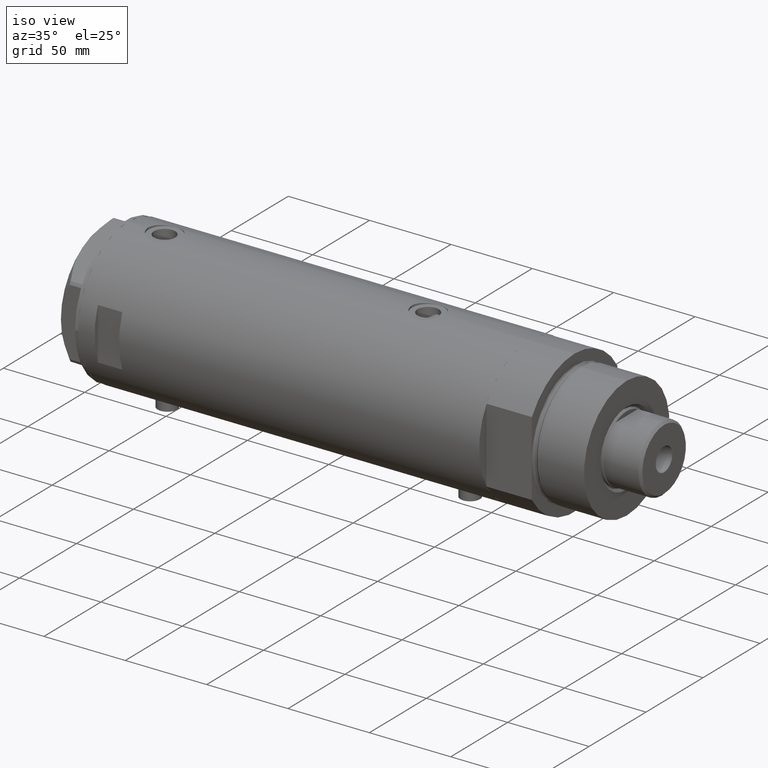
[diagram: clean part render]
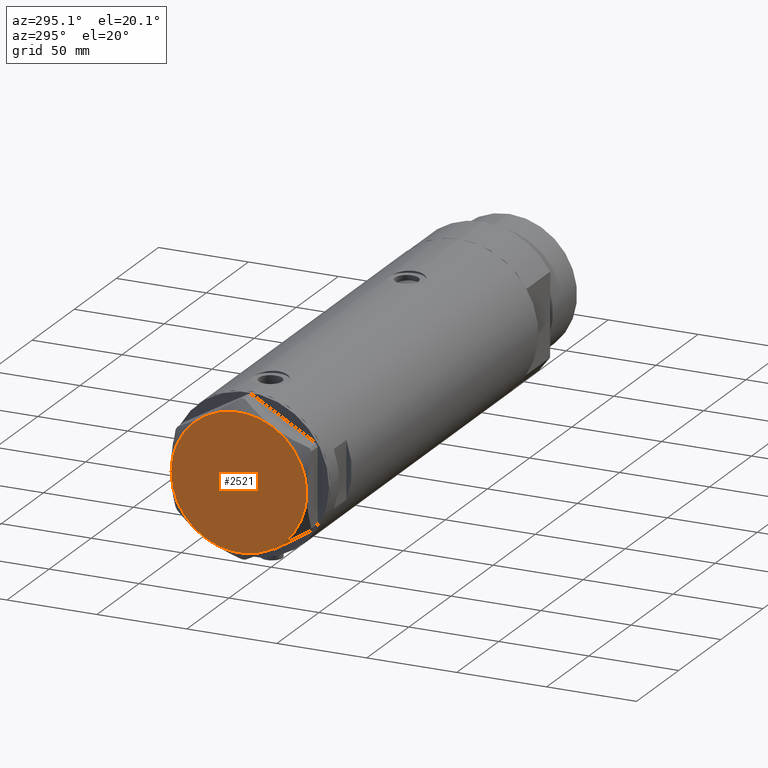
[diagram: tour spotlight — one face highlighted and labeled with its STEP entity id]
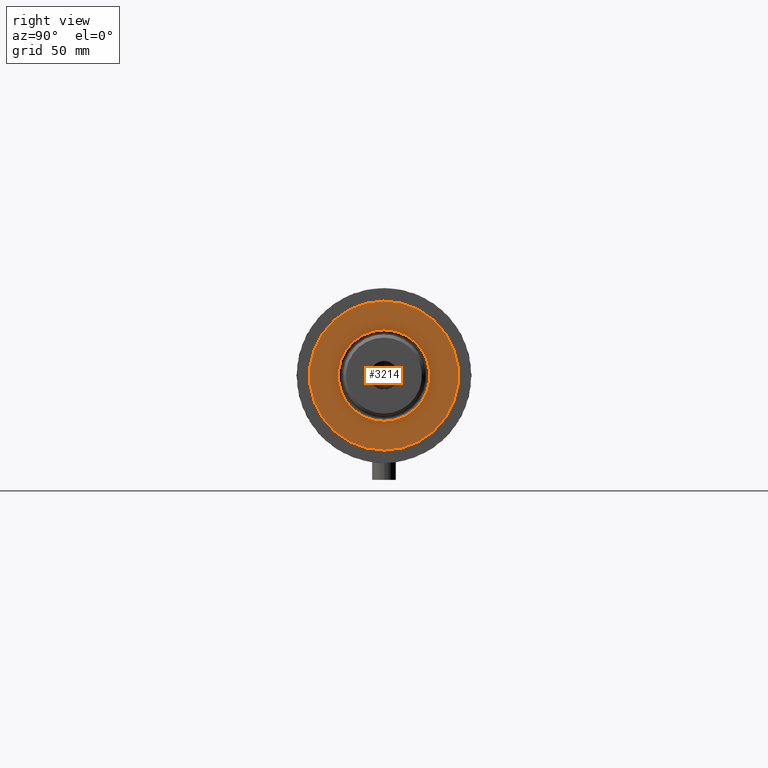
[diagram: tour spotlight — one face highlighted and labeled with its STEP entity id]
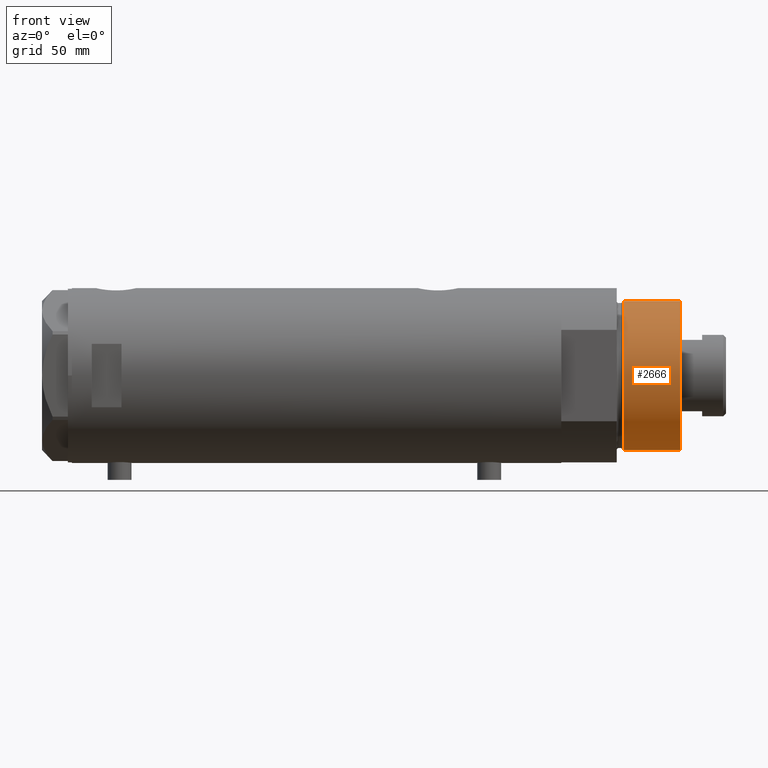
[diagram: tour spotlight — one face highlighted and labeled with its STEP entity id]
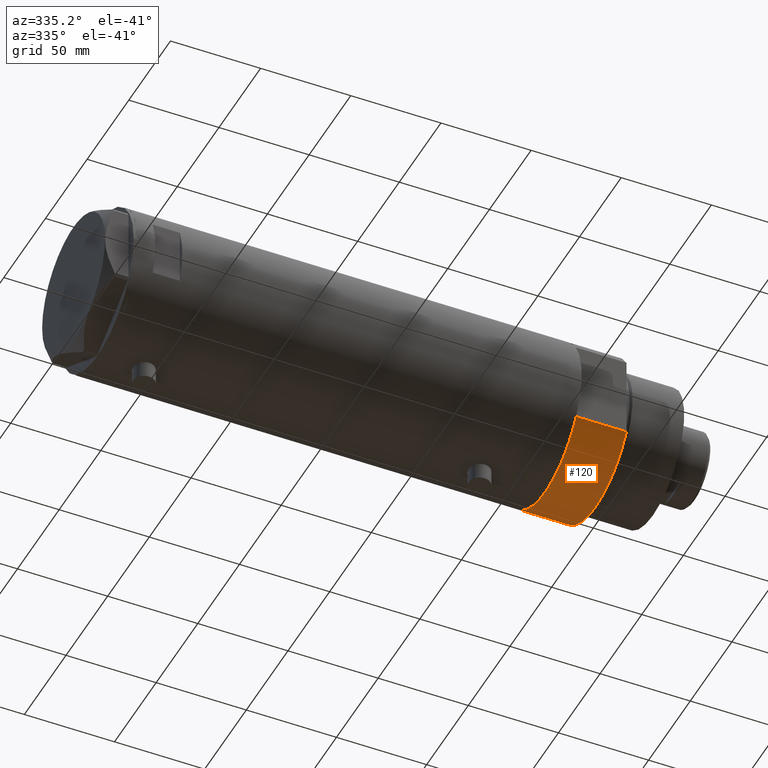
[diagram: tour spotlight — one face highlighted and labeled with its STEP entity id]
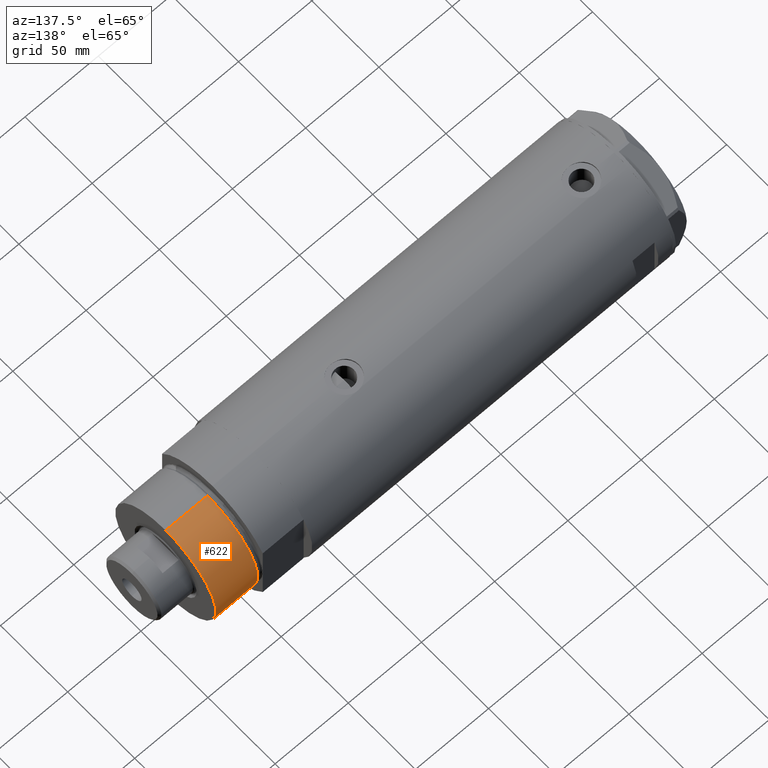
[diagram: tour spotlight — one face highlighted and labeled with its STEP entity id]
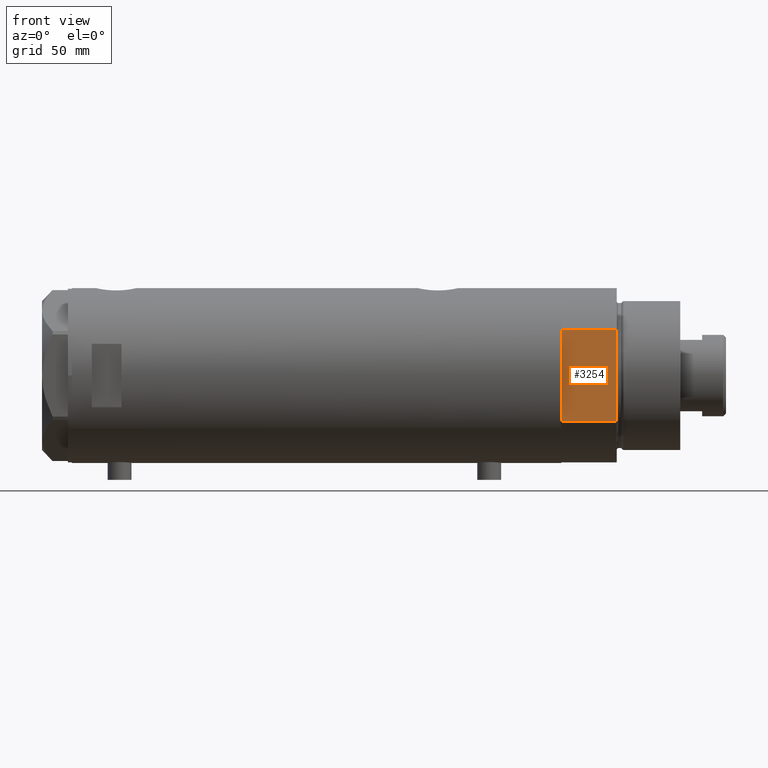
[diagram: tour spotlight — one face highlighted and labeled with its STEP entity id]
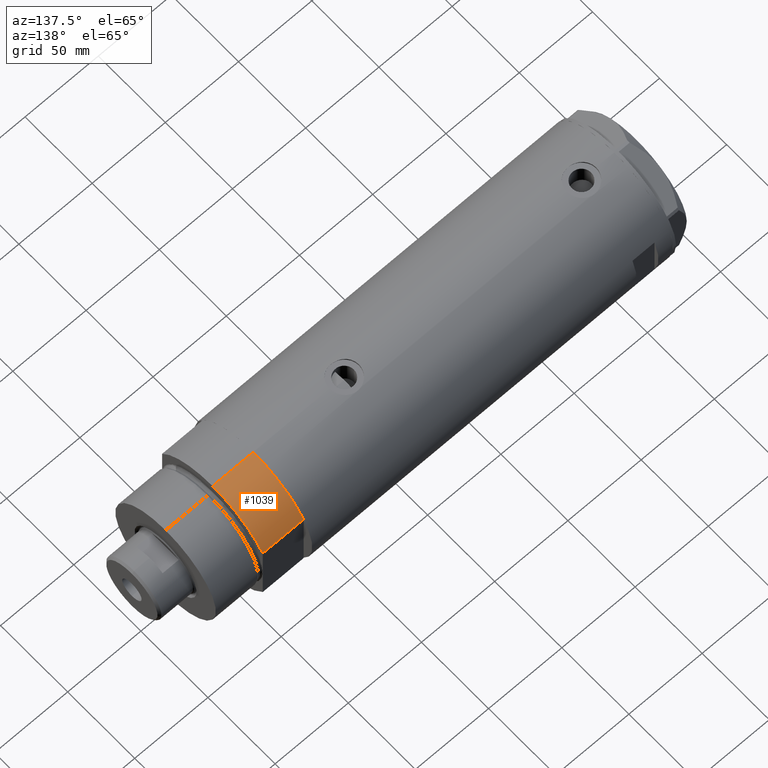
[diagram: tour spotlight — one face highlighted and labeled with its STEP entity id]
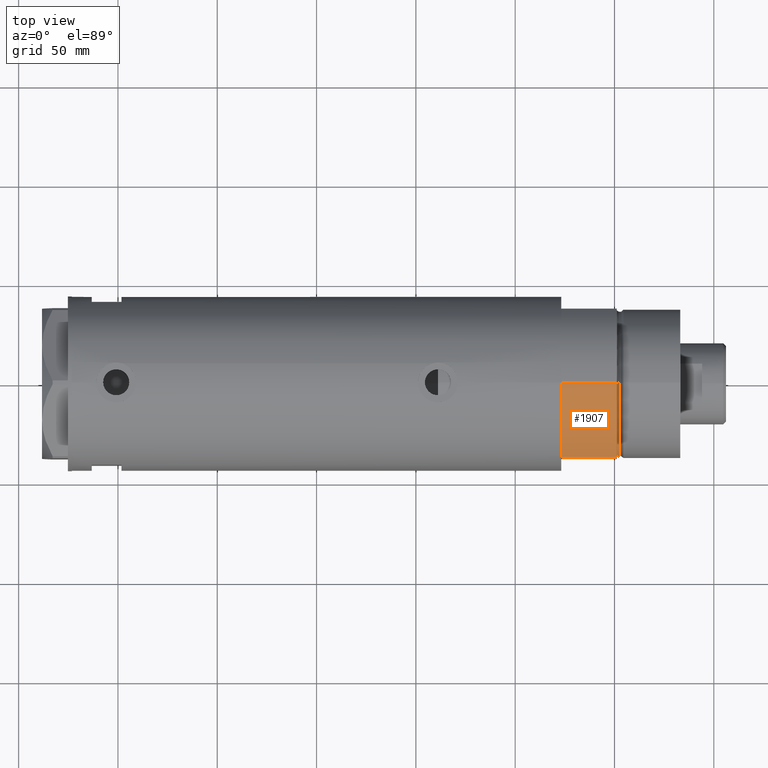
[diagram: tour spotlight — one face highlighted and labeled with its STEP entity id]
A machine part: a face-by-face anatomy tour. The part has 121 B-rep faces; the first image is the clean iso view, then the 8 largest visible faces are spotlighted one at a time (largest first), each with its STEP entity span.

Face 1 — auxiliary view, entity #2521. In plain terms, the highlighted planar face has unit normal (-1, -0, 0).
Definition (entity closure, byte-faithful):
#93 = CARTESIAN_POINT ( 'NONE',  ( 0.000000000000000000, 0.000000000000000000, 13.00000000000000000 ) ) ;
#193 = DIRECTION ( 'NONE',  ( 1.000000000000000000, 0.000000000000000000, 0.000000000000000000 ) ) ;
#208 = AXIS2_PLACEMENT_3D ( 'NONE', #291, #1034, #3112 ) ;
#291 = CARTESIAN_POINT ( 'NONE',  ( 0.000000000000000000, 0.000000000000000000, 13.00000000000000000 ) ) ;
#296 = CARTESIAN_POINT ( 'NONE',  ( 0.000000000000000000, 0.000000000000000000, 13.00000000000000000 ) ) ;
#501 = CIRCLE ( 'NONE', #3661, 37.75000000000000000 ) ;
#513 = EDGE_CURVE ( 'NONE', #3313, #1779, #1745, .T. ) ;
#609 = DIRECTION ( 'NONE',  ( 0.000000000000000000, 0.000000000000000000, 1.000000000000000000 ) ) ;
#646 = FACE_OUTER_BOUND ( 'NONE', #1351, .T. ) ;
#676 = VERTEX_POINT ( 'NONE', #2327 ) ;
#720 = CARTESIAN_POINT ( 'NONE',  ( 37.75000000000000711, 1.802777518484591547E-14, 13.00000000000000000 ) ) ;
#755 = CARTESIAN_POINT ( 'NONE',  ( -18.87499999999999645, 32.69245899286256218, 13.00000000000000000 ) ) ;
#807 = AXIS2_PLACEMENT_3D ( 'NONE', #3766, #609, #2392 ) ;
#943 = CIRCLE ( 'NONE', #208, 37.75000000000000000 ) ;
#1034 = DIRECTION ( 'NONE',  ( 0.000000000000000000, 0.000000000000000000, 1.000000000000000000 ) ) ;
#1062 = VERTEX_POINT ( 'NONE', #720 ) ;
#1160 = DIRECTION ( 'NONE',  ( 0.000000000000000000, 0.000000000000000000, 1.000000000000000000 ) ) ;
#1197 = ORIENTED_EDGE ( 'NONE', *, *, #2797, .T. ) ;
#1351 = EDGE_LOOP ( 'NONE', ( #3646, #1197, #3232, #2622, #2455, #1795 ) ) ;
#1358 = DIRECTION ( 'NONE',  ( 1.000000000000000000, 0.000000000000000000, 0.000000000000000000 ) ) ;
#1367 = DIRECTION ( 'NONE',  ( 0.000000000000000000, 0.000000000000000000, 1.000000000000000000 ) ) ;
#1537 = AXIS2_PLACEMENT_3D ( 'NONE', #4535, #1367, #2792 ) ;
#1630 = EDGE_CURVE ( 'NONE', #3030, #4122, #1822, .T. ) ;
#1684 = AXIS2_PLACEMENT_3D ( 'NONE', #296, #4222, #2037 ) ;
#1706 = CARTESIAN_POINT ( 'NONE',  ( 0.000000000000000000, 0.000000000000000000, 13.00000000000000000 ) ) ;
#1745 = CIRCLE ( 'NONE', #4023, 37.75000000000000000 ) ;
#1779 = VERTEX_POINT ( 'NONE', #755 ) ;
#1795 = ORIENTED_EDGE ( 'NONE', *, *, #3463, .T. ) ;
#1822 = CIRCLE ( 'NONE', #1537, 37.75000000000000000 ) ;
#1929 = CARTESIAN_POINT ( 'NONE',  ( 0.000000000000000000, 0.000000000000000000, 13.00000000000000000 ) ) ;
#2037 = DIRECTION ( 'NONE',  ( 1.000000000000000000, 0.000000000000000000, -0.000000000000000000 ) ) ;
#2171 = EDGE_CURVE ( 'NONE', #676, #1062, #3594, .T. ) ;
#2286 = CARTESIAN_POINT ( 'NONE',  ( -37.75000000000000000, -1.201851678989727067E-14, 13.00000000000000000 ) ) ;
#2327 = CARTESIAN_POINT ( 'NONE',  ( 18.87499999999998579, -32.69245899286256218, 13.00000000000000000 ) ) ;
#2392 = DIRECTION ( 'NONE',  ( 1.000000000000000000, 0.000000000000000000, 0.000000000000000000 ) ) ;
#2455 = ORIENTED_EDGE ( 'NONE', *, *, #1630, .T. ) ;
#2521 = ADVANCED_FACE ( 'NONE', ( #646 ), #3162, .T. ) ;
#2622 = ORIENTED_EDGE ( 'NONE', *, *, #3233, .T. ) ;
#2670 = DIRECTION ( 'NONE',  ( 0.000000000000000000, 0.000000000000000000, 1.000000000000000000 ) ) ;
#2792 = DIRECTION ( 'NONE',  ( 1.000000000000000000, 0.000000000000000000, 0.000000000000000000 ) ) ;
#2797 = EDGE_CURVE ( 'NONE', #1062, #3313, #943, .T. ) ;
#3030 = VERTEX_POINT ( 'NONE', #2286 ) ;
#3086 = CARTESIAN_POINT ( 'NONE',  ( 18.87500000000000000, 32.69245899286255508, 13.00000000000000000 ) ) ;
#3112 = DIRECTION ( 'NONE',  ( 1.000000000000000000, 0.000000000000000000, 0.000000000000000000 ) ) ;
#3120 = DIRECTION ( 'NONE',  ( 0.000000000000000000, 0.000000000000000000, 1.000000000000000000 ) ) ;
#3162 = PLANE ( 'NONE',  #1684 ) ;
#3228 = CIRCLE ( 'NONE', #3656, 37.75000000000000000 ) ;
#3232 = ORIENTED_EDGE ( 'NONE', *, *, #513, .T. ) ;
#3233 = EDGE_CURVE ( 'NONE', #1779, #3030, #3228, .T. ) ;
#3313 = VERTEX_POINT ( 'NONE', #3086 ) ;
#3463 = EDGE_CURVE ( 'NONE', #4122, #676, #501, .T. ) ;
#3579 = DIRECTION ( 'NONE',  ( 1.000000000000000000, 0.000000000000000000, 0.000000000000000000 ) ) ;
#3594 = CIRCLE ( 'NONE', #807, 37.75000000000000000 ) ;
#3627 = CARTESIAN_POINT ( 'NONE',  ( -18.87499999999999645, -32.69245899286255508, 13.00000000000000000 ) ) ;
#3646 = ORIENTED_EDGE ( 'NONE', *, *, #2171, .T. ) ;
#3656 = AXIS2_PLACEMENT_3D ( 'NONE', #1706, #3120, #1358 ) ;
#3661 = AXIS2_PLACEMENT_3D ( 'NONE', #93, #1160, #3579 ) ;
#3766 = CARTESIAN_POINT ( 'NONE',  ( 0.000000000000000000, 0.000000000000000000, 13.00000000000000000 ) ) ;
#4023 = AXIS2_PLACEMENT_3D ( 'NONE', #1929, #2670, #193 ) ;
#4122 = VERTEX_POINT ( 'NONE', #3627 ) ;
#4222 = DIRECTION ( 'NONE',  ( 0.000000000000000000, 0.000000000000000000, 1.000000000000000000 ) ) ;
#4535 = CARTESIAN_POINT ( 'NONE',  ( 0.000000000000000000, 0.000000000000000000, 13.00000000000000000 ) ) ;

Face 2 — right view, entity #3214. In plain terms, the highlighted planar face has unit normal (1, 0, -0).
Definition (entity closure, byte-faithful):
#38 = VERTEX_POINT ( 'NONE', #3469 ) ;
#275 = AXIS2_PLACEMENT_3D ( 'NONE', #1032, #3184, #1421 ) ;
#384 = CARTESIAN_POINT ( 'NONE',  ( 0.000000000000000000, 0.000000000000000000, 59.89999999999999147 ) ) ;
#400 = EDGE_LOOP ( 'NONE', ( #1303, #2602 ) ) ;
#434 = AXIS2_PLACEMENT_3D ( 'NONE', #384, #1782, #3199 ) ;
#495 = CIRCLE ( 'NONE', #4106, 37.50000000000000711 ) ;
#532 = CARTESIAN_POINT ( 'NONE',  ( 0.000000000000000000, 0.000000000000000000, 59.89999999999999147 ) ) ;
#557 = DIRECTION ( 'NONE',  ( 0.000000000000000000, 0.000000000000000000, 1.000000000000000000 ) ) ;
#628 = FACE_OUTER_BOUND ( 'NONE', #400, .T. ) ;
#653 = DIRECTION ( 'NONE',  ( 1.000000000000000000, 0.000000000000000000, -0.000000000000000000 ) ) ;
#698 = CARTESIAN_POINT ( 'NONE',  ( 0.000000000000000000, 0.000000000000000000, 59.89999999999999147 ) ) ;
#747 = CARTESIAN_POINT ( 'NONE',  ( 23.05000000000002913, 0.000000000000000000, 59.89999999999999147 ) ) ;
#799 = AXIS2_PLACEMENT_3D ( 'NONE', #532, #3003, #3049 ) ;
#929 = VERTEX_POINT ( 'NONE', #747 ) ;
#951 = CIRCLE ( 'NONE', #434, 23.05000000000002913 ) ;
#1029 = ORIENTED_EDGE ( 'NONE', *, *, #1281, .T. ) ;
#1032 = CARTESIAN_POINT ( 'NONE',  ( 0.000000000000000000, 0.000000000000000000, 59.89999999999999147 ) ) ;
#1093 = AXIS2_PLACEMENT_3D ( 'NONE', #698, #1296, #653 ) ;
#1281 = EDGE_CURVE ( 'NONE', #929, #4371, #2726, .T. ) ;
#1296 = DIRECTION ( 'NONE',  ( 0.000000000000000000, 0.000000000000000000, 1.000000000000000000 ) ) ;
#1303 = ORIENTED_EDGE ( 'NONE', *, *, #3058, .T. ) ;
#1421 = DIRECTION ( 'NONE',  ( 1.000000000000000000, 0.000000000000000000, 0.000000000000000000 ) ) ;
#1641 = CARTESIAN_POINT ( 'NONE',  ( -23.05000000000002913, 2.822810872034651791E-15, 59.89999999999999147 ) ) ;
#1705 = VERTEX_POINT ( 'NONE', #3773 ) ;
#1782 = DIRECTION ( 'NONE',  ( -0.000000000000000000, -0.000000000000000000, -1.000000000000000000 ) ) ;
#2602 = ORIENTED_EDGE ( 'NONE', *, *, #3330, .T. ) ;
#2714 = PLANE ( 'NONE',  #1093 ) ;
#2726 = CIRCLE ( 'NONE', #799, 23.05000000000002913 ) ;
#3003 = DIRECTION ( 'NONE',  ( -0.000000000000000000, -0.000000000000000000, -1.000000000000000000 ) ) ;
#3033 = DIRECTION ( 'NONE',  ( 1.000000000000000000, 0.000000000000000000, 0.000000000000000000 ) ) ;
#3049 = DIRECTION ( 'NONE',  ( 1.000000000000000000, 0.000000000000000000, 0.000000000000000000 ) ) ;
#3058 = EDGE_CURVE ( 'NONE', #1705, #38, #495, .T. ) ;
#3184 = DIRECTION ( 'NONE',  ( 0.000000000000000000, 0.000000000000000000, 1.000000000000000000 ) ) ;
#3199 = DIRECTION ( 'NONE',  ( 1.000000000000000000, 0.000000000000000000, 0.000000000000000000 ) ) ;
#3214 = ADVANCED_FACE ( 'NONE', ( #3784, #628 ), #2714, .T. ) ;
#3330 = EDGE_CURVE ( 'NONE', #38, #1705, #4243, .T. ) ;
#3350 = CARTESIAN_POINT ( 'NONE',  ( 0.000000000000000000, 0.000000000000000000, 59.89999999999999147 ) ) ;
#3469 = CARTESIAN_POINT ( 'NONE',  ( 37.50000000000000711, 4.592425496802575156E-15, 59.89999999999999147 ) ) ;
#3585 = ORIENTED_EDGE ( 'NONE', *, *, #3746, .T. ) ;
#3633 = EDGE_LOOP ( 'NONE', ( #1029, #3585 ) ) ;
#3746 = EDGE_CURVE ( 'NONE', #4371, #929, #951, .T. ) ;
#3773 = CARTESIAN_POINT ( 'NONE',  ( -37.50000000000000711, 0.000000000000000000, 59.89999999999999147 ) ) ;
#3784 = FACE_BOUND ( 'NONE', #3633, .T. ) ;
#4106 = AXIS2_PLACEMENT_3D ( 'NONE', #3350, #557, #3033 ) ;
#4243 = CIRCLE ( 'NONE', #275, 37.50000000000000711 ) ;
#4371 = VERTEX_POINT ( 'NONE', #1641 ) ;

Face 3 — front view, entity #2666. In plain terms, the highlighted cylindrical surface (partial cylindrical patch) has radius 37.5 mm, axis along (-1, -0, 0).
Definition (entity closure, byte-faithful):
#38 = VERTEX_POINT ( 'NONE', #3469 ) ;
#239 = CYLINDRICAL_SURFACE ( 'NONE', #1253, 37.50000000000000711 ) ;
#263 = CARTESIAN_POINT ( 'NONE',  ( 37.50000000000000711, 4.592425496802575156E-15, 59.89999999999999147 ) ) ;
#455 = ORIENTED_EDGE ( 'NONE', *, *, #3058, .F. ) ;
#495 = CIRCLE ( 'NONE', #4106, 37.50000000000000711 ) ;
#508 = VECTOR ( 'NONE', #1584, 1000.000000000000000 ) ;
#557 = DIRECTION ( 'NONE',  ( 0.000000000000000000, 0.000000000000000000, 1.000000000000000000 ) ) ;
#711 = CARTESIAN_POINT ( 'NONE',  ( 0.000000000000000000, 0.000000000000000000, 31.27384048104054415 ) ) ;
#1143 = CARTESIAN_POINT ( 'NONE',  ( -37.50000000000000711, 0.000000000000000000, 59.89999999999999147 ) ) ;
#1253 = AXIS2_PLACEMENT_3D ( 'NONE', #1306, #2270, #2686 ) ;
#1306 = CARTESIAN_POINT ( 'NONE',  ( 0.000000000000000000, 0.000000000000000000, 59.89999999999999147 ) ) ;
#1356 = EDGE_LOOP ( 'NONE', ( #2017, #455, #4464, #3211 ) ) ;
#1584 = DIRECTION ( 'NONE',  ( -0.000000000000000000, -0.000000000000000000, -1.000000000000000000 ) ) ;
#1705 = VERTEX_POINT ( 'NONE', #3773 ) ;
#2017 = ORIENTED_EDGE ( 'NONE', *, *, #2462, .F. ) ;
#2019 = VERTEX_POINT ( 'NONE', #4350 ) ;
#2270 = DIRECTION ( 'NONE',  ( -0.000000000000000000, -0.000000000000000000, -1.000000000000000000 ) ) ;
#2462 = EDGE_CURVE ( 'NONE', #38, #4355, #4472, .T. ) ;
#2560 = DIRECTION ( 'NONE',  ( -0.000000000000000000, -0.000000000000000000, -1.000000000000000000 ) ) ;
#2579 = CIRCLE ( 'NONE', #3456, 37.50000000000000711 ) ;
#2666 = ADVANCED_FACE ( 'NONE', ( #3359 ), #239, .T. ) ;
#2686 = DIRECTION ( 'NONE',  ( -1.000000000000000000, 0.000000000000000000, 0.000000000000000000 ) ) ;
#2888 = DIRECTION ( 'NONE',  ( 1.000000000000000000, 0.000000000000000000, 0.000000000000000000 ) ) ;
#3033 = DIRECTION ( 'NONE',  ( 1.000000000000000000, 0.000000000000000000, 0.000000000000000000 ) ) ;
#3058 = EDGE_CURVE ( 'NONE', #1705, #38, #495, .T. ) ;
#3211 = ORIENTED_EDGE ( 'NONE', *, *, #3425, .T. ) ;
#3350 = CARTESIAN_POINT ( 'NONE',  ( 0.000000000000000000, 0.000000000000000000, 59.89999999999999147 ) ) ;
#3359 = FACE_OUTER_BOUND ( 'NONE', #1356, .T. ) ;
#3425 = EDGE_CURVE ( 'NONE', #2019, #4355, #2579, .T. ) ;
#3456 = AXIS2_PLACEMENT_3D ( 'NONE', #711, #3512, #2888 ) ;
#3469 = CARTESIAN_POINT ( 'NONE',  ( 37.50000000000000711, 4.592425496802575156E-15, 59.89999999999999147 ) ) ;
#3512 = DIRECTION ( 'NONE',  ( -0.000000000000000000, -0.000000000000000000, 1.000000000000000000 ) ) ;
#3666 = VECTOR ( 'NONE', #2560, 1000.000000000000000 ) ;
#3697 = LINE ( 'NONE', #1143, #3666 ) ;
#3773 = CARTESIAN_POINT ( 'NONE',  ( -37.50000000000000711, 0.000000000000000000, 59.89999999999999147 ) ) ;
#4034 = CARTESIAN_POINT ( 'NONE',  ( 37.50000000000000711, 4.592425496802575156E-15, 31.27384048104054415 ) ) ;
#4106 = AXIS2_PLACEMENT_3D ( 'NONE', #3350, #557, #3033 ) ;
#4201 = EDGE_CURVE ( 'NONE', #1705, #2019, #3697, .T. ) ;
#4350 = CARTESIAN_POINT ( 'NONE',  ( -37.50000000000000711, 0.000000000000000000, 31.27384048104054415 ) ) ;
#4355 = VERTEX_POINT ( 'NONE', #4034 ) ;
#4464 = ORIENTED_EDGE ( 'NONE', *, *, #4201, .T. ) ;
#4472 = LINE ( 'NONE', #263, #508 ) ;

Face 4 — auxiliary view, entity #120. In plain terms, the highlighted cylindrical surface (partial cylindrical patch) has radius 44 mm, axis along (-1, -0, 0).
Definition (entity closure, byte-faithful):
#47 = VECTOR ( 'NONE', #1597, 1000.000000000000000 ) ;
#120 = ADVANCED_FACE ( 'NONE', ( #4481 ), #1154, .T. ) ;
#135 = CIRCLE ( 'NONE', #2738, 44.00000000000000000 ) ;
#157 = VERTEX_POINT ( 'NONE', #348 ) ;
#166 = LINE ( 'NONE', #184, #47 ) ;
#184 = CARTESIAN_POINT ( 'NONE',  ( 23.01629857296780557, -37.50000000000000000, 0.000000000000000000 ) ) ;
#227 = EDGE_CURVE ( 'NONE', #2398, #478, #1514, .T. ) ;
#348 = CARTESIAN_POINT ( 'NONE',  ( 23.01629857296780557, -37.50000000000000000, 0.000000000000000000 ) ) ;
#397 = CARTESIAN_POINT ( 'NONE',  ( 0.000000000000000000, 0.000000000000000000, 27.89999999999999858 ) ) ;
#414 = DIRECTION ( 'NONE',  ( 1.000000000000000000, 0.000000000000000000, 0.000000000000000000 ) ) ;
#478 = VERTEX_POINT ( 'NONE', #1222 ) ;
#585 = AXIS2_PLACEMENT_3D ( 'NONE', #1210, #2624, #3932 ) ;
#723 = CARTESIAN_POINT ( 'NONE',  ( 0.000000000000000000, 0.000000000000000000, 27.89999999999999858 ) ) ;
#766 = EDGE_CURVE ( 'NONE', #157, #1808, #166, .T. ) ;
#1074 = CARTESIAN_POINT ( 'NONE',  ( 23.01629857296780557, -37.50000000000000000, 27.89999999999999858 ) ) ;
#1154 = CYLINDRICAL_SURFACE ( 'NONE', #2861, 44.00000000000000000 ) ;
#1210 = CARTESIAN_POINT ( 'NONE',  ( 0.000000000000000000, 0.000000000000000000, 0.000000000000000000 ) ) ;
#1222 = CARTESIAN_POINT ( 'NONE',  ( 23.01629857296780557, 37.50000000000000000, 27.89999999999999858 ) ) ;
#1450 = ORIENTED_EDGE ( 'NONE', *, *, #3545, .T. ) ;
#1514 = LINE ( 'NONE', #4245, #4380 ) ;
#1572 = ORIENTED_EDGE ( 'NONE', *, *, #227, .T. ) ;
#1597 = DIRECTION ( 'NONE',  ( -0.000000000000000000, -0.000000000000000000, 1.000000000000000000 ) ) ;
#1808 = VERTEX_POINT ( 'NONE', #1074 ) ;
#2124 = DIRECTION ( 'NONE',  ( -1.000000000000000000, 0.000000000000000000, 0.000000000000000000 ) ) ;
#2141 = DIRECTION ( 'NONE',  ( 0.000000000000000000, 0.000000000000000000, 1.000000000000000000 ) ) ;
#2398 = VERTEX_POINT ( 'NONE', #2668 ) ;
#2589 = DIRECTION ( 'NONE',  ( -0.000000000000000000, -0.000000000000000000, 1.000000000000000000 ) ) ;
#2624 = DIRECTION ( 'NONE',  ( 0.000000000000000000, 0.000000000000000000, 1.000000000000000000 ) ) ;
#2668 = CARTESIAN_POINT ( 'NONE',  ( 23.01629857296780557, 37.50000000000000000, 0.000000000000000000 ) ) ;
#2738 = AXIS2_PLACEMENT_3D ( 'NONE', #397, #2141, #414 ) ;
#2861 = AXIS2_PLACEMENT_3D ( 'NONE', #723, #2924, #2124 ) ;
#2904 = ORIENTED_EDGE ( 'NONE', *, *, #766, .F. ) ;
#2924 = DIRECTION ( 'NONE',  ( -0.000000000000000000, -0.000000000000000000, -1.000000000000000000 ) ) ;
#3291 = ORIENTED_EDGE ( 'NONE', *, *, #4487, .F. ) ;
#3545 = EDGE_CURVE ( 'NONE', #157, #2398, #4396, .T. ) ;
#3932 = DIRECTION ( 'NONE',  ( 1.000000000000000000, 0.000000000000000000, 0.000000000000000000 ) ) ;
#4245 = CARTESIAN_POINT ( 'NONE',  ( 23.01629857296780557, 37.50000000000000000, 0.000000000000000000 ) ) ;
#4380 = VECTOR ( 'NONE', #2589, 1000.000000000000000 ) ;
#4396 = CIRCLE ( 'NONE', #585, 44.00000000000000000 ) ;
#4481 = FACE_OUTER_BOUND ( 'NONE', #4494, .T. ) ;
#4487 = EDGE_CURVE ( 'NONE', #1808, #478, #135, .T. ) ;
#4494 = EDGE_LOOP ( 'NONE', ( #3291, #2904, #1450, #1572 ) ) ;

Face 5 — auxiliary view, entity #622. In plain terms, the highlighted cylindrical surface (partial cylindrical patch) has radius 37.5 mm, axis along (-1, -0, 0).
Definition (entity closure, byte-faithful):
#38 = VERTEX_POINT ( 'NONE', #3469 ) ;
#176 = EDGE_LOOP ( 'NONE', ( #189, #563, #788, #2673 ) ) ;
#189 = ORIENTED_EDGE ( 'NONE', *, *, #3330, .F. ) ;
#263 = CARTESIAN_POINT ( 'NONE',  ( 37.50000000000000711, 4.592425496802575156E-15, 59.89999999999999147 ) ) ;
#275 = AXIS2_PLACEMENT_3D ( 'NONE', #1032, #3184, #1421 ) ;
#282 = AXIS2_PLACEMENT_3D ( 'NONE', #981, #1687, #3354 ) ;
#508 = VECTOR ( 'NONE', #1584, 1000.000000000000000 ) ;
#563 = ORIENTED_EDGE ( 'NONE', *, *, #2462, .T. ) ;
#622 = ADVANCED_FACE ( 'NONE', ( #2983 ), #877, .T. ) ;
#788 = ORIENTED_EDGE ( 'NONE', *, *, #3567, .T. ) ;
#877 = CYLINDRICAL_SURFACE ( 'NONE', #1158, 37.50000000000000711 ) ;
#981 = CARTESIAN_POINT ( 'NONE',  ( 0.000000000000000000, 0.000000000000000000, 31.27384048104054415 ) ) ;
#1032 = CARTESIAN_POINT ( 'NONE',  ( 0.000000000000000000, 0.000000000000000000, 59.89999999999999147 ) ) ;
#1143 = CARTESIAN_POINT ( 'NONE',  ( -37.50000000000000711, 0.000000000000000000, 59.89999999999999147 ) ) ;
#1158 = AXIS2_PLACEMENT_3D ( 'NONE', #2281, #4387, #1249 ) ;
#1249 = DIRECTION ( 'NONE',  ( -1.000000000000000000, 0.000000000000000000, 0.000000000000000000 ) ) ;
#1421 = DIRECTION ( 'NONE',  ( 1.000000000000000000, 0.000000000000000000, 0.000000000000000000 ) ) ;
#1584 = DIRECTION ( 'NONE',  ( -0.000000000000000000, -0.000000000000000000, -1.000000000000000000 ) ) ;
#1687 = DIRECTION ( 'NONE',  ( -0.000000000000000000, -0.000000000000000000, 1.000000000000000000 ) ) ;
#1705 = VERTEX_POINT ( 'NONE', #3773 ) ;
#2019 = VERTEX_POINT ( 'NONE', #4350 ) ;
#2281 = CARTESIAN_POINT ( 'NONE',  ( 0.000000000000000000, 0.000000000000000000, 59.89999999999999147 ) ) ;
#2462 = EDGE_CURVE ( 'NONE', #38, #4355, #4472, .T. ) ;
#2560 = DIRECTION ( 'NONE',  ( -0.000000000000000000, -0.000000000000000000, -1.000000000000000000 ) ) ;
#2658 = CIRCLE ( 'NONE', #282, 37.50000000000000711 ) ;
#2673 = ORIENTED_EDGE ( 'NONE', *, *, #4201, .F. ) ;
#2983 = FACE_OUTER_BOUND ( 'NONE', #176, .T. ) ;
#3184 = DIRECTION ( 'NONE',  ( 0.000000000000000000, 0.000000000000000000, 1.000000000000000000 ) ) ;
#3330 = EDGE_CURVE ( 'NONE', #38, #1705, #4243, .T. ) ;
#3354 = DIRECTION ( 'NONE',  ( 1.000000000000000000, 0.000000000000000000, 0.000000000000000000 ) ) ;
#3469 = CARTESIAN_POINT ( 'NONE',  ( 37.50000000000000711, 4.592425496802575156E-15, 59.89999999999999147 ) ) ;
#3567 = EDGE_CURVE ( 'NONE', #4355, #2019, #2658, .T. ) ;
#3666 = VECTOR ( 'NONE', #2560, 1000.000000000000000 ) ;
#3697 = LINE ( 'NONE', #1143, #3666 ) ;
#3773 = CARTESIAN_POINT ( 'NONE',  ( -37.50000000000000711, 0.000000000000000000, 59.89999999999999147 ) ) ;
#4034 = CARTESIAN_POINT ( 'NONE',  ( 37.50000000000000711, 4.592425496802575156E-15, 31.27384048104054415 ) ) ;
#4201 = EDGE_CURVE ( 'NONE', #1705, #2019, #3697, .T. ) ;
#4243 = CIRCLE ( 'NONE', #275, 37.50000000000000711 ) ;
#4350 = CARTESIAN_POINT ( 'NONE',  ( -37.50000000000000711, 0.000000000000000000, 31.27384048104054415 ) ) ;
#4355 = VERTEX_POINT ( 'NONE', #4034 ) ;
#4387 = DIRECTION ( 'NONE',  ( -0.000000000000000000, -0.000000000000000000, -1.000000000000000000 ) ) ;
#4472 = LINE ( 'NONE', #263, #508 ) ;

Face 6 — front view, entity #3254. In plain terms, the highlighted planar face has unit normal (-0, 1, 0).
Definition (entity closure, byte-faithful):
#47 = VECTOR ( 'NONE', #1597, 1000.000000000000000 ) ;
#124 = ORIENTED_EDGE ( 'NONE', *, *, #2704, .T. ) ;
#126 = AXIS2_PLACEMENT_3D ( 'NONE', #3141, #1043, #2089 ) ;
#137 = ORIENTED_EDGE ( 'NONE', *, *, #2246, .F. ) ;
#157 = VERTEX_POINT ( 'NONE', #348 ) ;
#163 = DIRECTION ( 'NONE',  ( -1.000000000000000000, -0.000000000000000000, -0.000000000000000000 ) ) ;
#166 = LINE ( 'NONE', #184, #47 ) ;
#184 = CARTESIAN_POINT ( 'NONE',  ( 23.01629857296780557, -37.50000000000000000, 0.000000000000000000 ) ) ;
#348 = CARTESIAN_POINT ( 'NONE',  ( 23.01629857296780557, -37.50000000000000000, 0.000000000000000000 ) ) ;
#459 = EDGE_LOOP ( 'NONE', ( #3689, #124, #1977, #1934, #137, #3777, #715 ) ) ;
#498 = EDGE_CURVE ( 'NONE', #2689, #1262, #1199, .T. ) ;
#546 = CARTESIAN_POINT ( 'NONE',  ( -23.01629857296780557, -37.50000000000000000, 27.89999999999999858 ) ) ;
#566 = CARTESIAN_POINT ( 'NONE',  ( -23.01629857296780557, -37.50000000000000000, 0.000000000000000000 ) ) ;
#678 = PLANE ( 'NONE',  #126 ) ;
#715 = ORIENTED_EDGE ( 'NONE', *, *, #766, .T. ) ;
#731 = DIRECTION ( 'NONE',  ( -1.000000000000000000, -0.000000000000000000, -0.000000000000000000 ) ) ;
#766 = EDGE_CURVE ( 'NONE', #157, #1808, #166, .T. ) ;
#795 = VECTOR ( 'NONE', #3366, 1000.000000000000000 ) ;
#924 = CARTESIAN_POINT ( 'NONE',  ( -23.01629857296780557, -37.50000000000000000, 27.89999999999999858 ) ) ;
#1043 = DIRECTION ( 'NONE',  ( -0.000000000000000000, 1.000000000000000000, 0.000000000000000000 ) ) ;
#1074 = CARTESIAN_POINT ( 'NONE',  ( 23.01629857296780557, -37.50000000000000000, 27.89999999999999858 ) ) ;
#1199 = LINE ( 'NONE', #2615, #795 ) ;
#1262 = VERTEX_POINT ( 'NONE', #924 ) ;
#1317 = VECTOR ( 'NONE', #1962, 1000.000000000000000 ) ;
#1420 = CARTESIAN_POINT ( 'NONE',  ( -23.01629857296780557, -37.50000000000000000, 27.89999999999999858 ) ) ;
#1506 = LINE ( 'NONE', #2164, #2659 ) ;
#1597 = DIRECTION ( 'NONE',  ( -0.000000000000000000, -0.000000000000000000, 1.000000000000000000 ) ) ;
#1723 = EDGE_CURVE ( 'NONE', #1808, #1955, #2723, .T. ) ;
#1808 = VERTEX_POINT ( 'NONE', #1074 ) ;
#1934 = ORIENTED_EDGE ( 'NONE', *, *, #3554, .F. ) ;
#1955 = VERTEX_POINT ( 'NONE', #2648 ) ;
#1962 = DIRECTION ( 'NONE',  ( -1.000000000000000000, -0.000000000000000000, -0.000000000000000000 ) ) ;
#1964 = CARTESIAN_POINT ( 'NONE',  ( -23.01629857296780557, -37.50000000000000000, 0.000000000000000000 ) ) ;
#1977 = ORIENTED_EDGE ( 'NONE', *, *, #498, .F. ) ;
#2089 = DIRECTION ( 'NONE',  ( 0.000000000000000000, -0.000000000000000000, 1.000000000000000000 ) ) ;
#2164 = CARTESIAN_POINT ( 'NONE',  ( -23.01629857296780557, -37.50000000000000000, 0.000000000000000000 ) ) ;
#2246 = EDGE_CURVE ( 'NONE', #4257, #2987, #1506, .T. ) ;
#2384 = CARTESIAN_POINT ( 'NONE',  ( 13.91941090707505957, -37.50000000000000000, 0.000000000000000000 ) ) ;
#2615 = CARTESIAN_POINT ( 'NONE',  ( -23.01629857296780557, -37.50000000000000000, 0.000000000000000000 ) ) ;
#2648 = CARTESIAN_POINT ( 'NONE',  ( 0.000000000000000000, -37.50000000000000000, 27.89999999999999858 ) ) ;
#2659 = VECTOR ( 'NONE', #3968, 1000.000000000000000 ) ;
#2689 = VERTEX_POINT ( 'NONE', #1964 ) ;
#2704 = EDGE_CURVE ( 'NONE', #1955, #1262, #2708, .T. ) ;
#2708 = LINE ( 'NONE', #546, #3175 ) ;
#2723 = LINE ( 'NONE', #1420, #4175 ) ;
#2987 = VERTEX_POINT ( 'NONE', #4530 ) ;
#3062 = DIRECTION ( 'NONE',  ( -1.000000000000000000, -0.000000000000000000, -0.000000000000000000 ) ) ;
#3141 = CARTESIAN_POINT ( 'NONE',  ( -23.01629857296780557, -37.50000000000000000, 0.000000000000000000 ) ) ;
#3168 = VECTOR ( 'NONE', #163, 1000.000000000000000 ) ;
#3175 = VECTOR ( 'NONE', #3062, 1000.000000000000000 ) ;
#3254 = ADVANCED_FACE ( 'NONE', ( #3828 ), #678, .F. ) ;
#3267 = EDGE_CURVE ( 'NONE', #157, #4257, #4226, .T. ) ;
#3334 = CARTESIAN_POINT ( 'NONE',  ( -23.01629857296780557, -37.50000000000000000, 0.000000000000000000 ) ) ;
#3366 = DIRECTION ( 'NONE',  ( -0.000000000000000000, -0.000000000000000000, 1.000000000000000000 ) ) ;
#3554 = EDGE_CURVE ( 'NONE', #2987, #2689, #4013, .T. ) ;
#3689 = ORIENTED_EDGE ( 'NONE', *, *, #1723, .T. ) ;
#3777 = ORIENTED_EDGE ( 'NONE', *, *, #3267, .F. ) ;
#3828 = FACE_OUTER_BOUND ( 'NONE', #459, .T. ) ;
#3968 = DIRECTION ( 'NONE',  ( -1.000000000000000000, -0.000000000000000000, -0.000000000000000000 ) ) ;
#4013 = LINE ( 'NONE', #3334, #3168 ) ;
#4175 = VECTOR ( 'NONE', #731, 1000.000000000000000 ) ;
#4226 = LINE ( 'NONE', #566, #1317 ) ;
#4257 = VERTEX_POINT ( 'NONE', #2384 ) ;
#4530 = CARTESIAN_POINT ( 'NONE',  ( -13.91941090707505957, -37.50000000000000000, 0.000000000000000000 ) ) ;

Face 7 — auxiliary view, entity #1039. In plain terms, the highlighted cylindrical surface (partial cylindrical patch) has radius 44 mm, axis along (-1, -0, 0).
Definition (entity closure, byte-faithful):
#24 = DIRECTION ( 'NONE',  ( -0.000000000000000000, -0.000000000000000000, 1.000000000000000000 ) ) ;
#83 = VERTEX_POINT ( 'NONE', #4526 ) ;
#225 = ORIENTED_EDGE ( 'NONE', *, *, #1679, .F. ) ;
#274 = DIRECTION ( 'NONE',  ( -1.000000000000000000, 0.000000000000000000, 0.000000000000000000 ) ) ;
#290 = CARTESIAN_POINT ( 'NONE',  ( 0.000000000000000000, 0.000000000000000000, 27.89999999999999858 ) ) ;
#354 = DIRECTION ( 'NONE',  ( 0.000000000000000000, 0.000000000000000000, 1.000000000000000000 ) ) ;
#380 = CARTESIAN_POINT ( 'NONE',  ( -23.01629857296780557, 37.50000000000000000, 27.89999999999999858 ) ) ;
#629 = CARTESIAN_POINT ( 'NONE',  ( 0.000000000000000000, 0.000000000000000000, 27.89999999999999858 ) ) ;
#655 = DIRECTION ( 'NONE',  ( -0.000000000000000000, -0.000000000000000000, -1.000000000000000000 ) ) ;
#730 = AXIS2_PLACEMENT_3D ( 'NONE', #629, #655, #274 ) ;
#978 = FACE_OUTER_BOUND ( 'NONE', #1054, .T. ) ;
#1039 = ADVANCED_FACE ( 'NONE', ( #978 ), #2390, .T. ) ;
#1054 = EDGE_LOOP ( 'NONE', ( #2240, #225, #2254, #1145 ) ) ;
#1082 = VERTEX_POINT ( 'NONE', #380 ) ;
#1145 = ORIENTED_EDGE ( 'NONE', *, *, #2545, .T. ) ;
#1519 = CARTESIAN_POINT ( 'NONE',  ( -23.01629857296780557, 37.50000000000000000, 0.000000000000000000 ) ) ;
#1679 = EDGE_CURVE ( 'NONE', #1082, #83, #2268, .T. ) ;
#1792 = LINE ( 'NONE', #1519, #2278 ) ;
#1859 = CARTESIAN_POINT ( 'NONE',  ( -23.01629857296780557, 37.50000000000000000, 0.000000000000000000 ) ) ;
#1886 = DIRECTION ( 'NONE',  ( -0.000000000000000000, -0.000000000000000000, -1.000000000000000000 ) ) ;
#1919 = EDGE_CURVE ( 'NONE', #83, #2990, #3009, .T. ) ;
#2240 = ORIENTED_EDGE ( 'NONE', *, *, #1919, .F. ) ;
#2254 = ORIENTED_EDGE ( 'NONE', *, *, #4507, .F. ) ;
#2268 = CIRCLE ( 'NONE', #4108, 44.00000000000000000 ) ;
#2278 = VECTOR ( 'NONE', #24, 1000.000000000000000 ) ;
#2390 = CYLINDRICAL_SURFACE ( 'NONE', #730, 44.00000000000000000 ) ;
#2545 = EDGE_CURVE ( 'NONE', #4476, #2990, #2883, .T. ) ;
#2590 = DIRECTION ( 'NONE',  ( 0.000000000000000000, 0.000000000000000000, 1.000000000000000000 ) ) ;
#2606 = CARTESIAN_POINT ( 'NONE',  ( -44.00000000000000000, 0.000000000000000000, 27.89999999999999858 ) ) ;
#2865 = CARTESIAN_POINT ( 'NONE',  ( 0.000000000000000000, 0.000000000000000000, 0.000000000000000000 ) ) ;
#2883 = CIRCLE ( 'NONE', #3094, 44.00000000000000000 ) ;
#2990 = VERTEX_POINT ( 'NONE', #3537 ) ;
#3009 = LINE ( 'NONE', #2606, #4538 ) ;
#3094 = AXIS2_PLACEMENT_3D ( 'NONE', #2865, #2590, #4337 ) ;
#3110 = DIRECTION ( 'NONE',  ( 1.000000000000000000, 0.000000000000000000, 0.000000000000000000 ) ) ;
#3537 = CARTESIAN_POINT ( 'NONE',  ( -44.00000000000000000, 0.000000000000000000, 0.000000000000000000 ) ) ;
#4108 = AXIS2_PLACEMENT_3D ( 'NONE', #290, #354, #3110 ) ;
#4337 = DIRECTION ( 'NONE',  ( 1.000000000000000000, 0.000000000000000000, 0.000000000000000000 ) ) ;
#4476 = VERTEX_POINT ( 'NONE', #1859 ) ;
#4507 = EDGE_CURVE ( 'NONE', #4476, #1082, #1792, .T. ) ;
#4526 = CARTESIAN_POINT ( 'NONE',  ( -44.00000000000000000, 0.000000000000000000, 27.89999999999999858 ) ) ;
#4538 = VECTOR ( 'NONE', #1886, 1000.000000000000000 ) ;

Face 8 — top view, entity #1907. In plain terms, the highlighted cylindrical surface (partial cylindrical patch) has radius 44 mm, axis along (-1, -0, 0).
Definition (entity closure, byte-faithful):
#51 = AXIS2_PLACEMENT_3D ( 'NONE', #3210, #3964, #463 ) ;
#83 = VERTEX_POINT ( 'NONE', #4526 ) ;
#136 = AXIS2_PLACEMENT_3D ( 'NONE', #260, #1671, #1719 ) ;
#257 = ORIENTED_EDGE ( 'NONE', *, *, #2759, .F. ) ;
#260 = CARTESIAN_POINT ( 'NONE',  ( 0.000000000000000000, 0.000000000000000000, 27.89999999999999858 ) ) ;
#294 = EDGE_LOOP ( 'NONE', ( #257, #1583, #1246, #2528 ) ) ;
#463 = DIRECTION ( 'NONE',  ( 1.000000000000000000, 0.000000000000000000, 0.000000000000000000 ) ) ;
#498 = EDGE_CURVE ( 'NONE', #2689, #1262, #1199, .T. ) ;
#656 = AXIS2_PLACEMENT_3D ( 'NONE', #2679, #3997, #1573 ) ;
#795 = VECTOR ( 'NONE', #3366, 1000.000000000000000 ) ;
#924 = CARTESIAN_POINT ( 'NONE',  ( -23.01629857296780557, -37.50000000000000000, 27.89999999999999858 ) ) ;
#1141 = EDGE_CURVE ( 'NONE', #2990, #2689, #4101, .T. ) ;
#1199 = LINE ( 'NONE', #2615, #795 ) ;
#1246 = ORIENTED_EDGE ( 'NONE', *, *, #1141, .T. ) ;
#1262 = VERTEX_POINT ( 'NONE', #924 ) ;
#1327 = CIRCLE ( 'NONE', #136, 44.00000000000000000 ) ;
#1573 = DIRECTION ( 'NONE',  ( -1.000000000000000000, 0.000000000000000000, 0.000000000000000000 ) ) ;
#1583 = ORIENTED_EDGE ( 'NONE', *, *, #1919, .T. ) ;
#1671 = DIRECTION ( 'NONE',  ( 0.000000000000000000, 0.000000000000000000, 1.000000000000000000 ) ) ;
#1719 = DIRECTION ( 'NONE',  ( 1.000000000000000000, 0.000000000000000000, 0.000000000000000000 ) ) ;
#1886 = DIRECTION ( 'NONE',  ( -0.000000000000000000, -0.000000000000000000, -1.000000000000000000 ) ) ;
#1907 = ADVANCED_FACE ( 'NONE', ( #3283 ), #4012, .T. ) ;
#1919 = EDGE_CURVE ( 'NONE', #83, #2990, #3009, .T. ) ;
#1964 = CARTESIAN_POINT ( 'NONE',  ( -23.01629857296780557, -37.50000000000000000, 0.000000000000000000 ) ) ;
#2528 = ORIENTED_EDGE ( 'NONE', *, *, #498, .T. ) ;
#2606 = CARTESIAN_POINT ( 'NONE',  ( -44.00000000000000000, 0.000000000000000000, 27.89999999999999858 ) ) ;
#2615 = CARTESIAN_POINT ( 'NONE',  ( -23.01629857296780557, -37.50000000000000000, 0.000000000000000000 ) ) ;
#2679 = CARTESIAN_POINT ( 'NONE',  ( 0.000000000000000000, 0.000000000000000000, 27.89999999999999858 ) ) ;
#2689 = VERTEX_POINT ( 'NONE', #1964 ) ;
#2759 = EDGE_CURVE ( 'NONE', #83, #1262, #1327, .T. ) ;
#2990 = VERTEX_POINT ( 'NONE', #3537 ) ;
#3009 = LINE ( 'NONE', #2606, #4538 ) ;
#3210 = CARTESIAN_POINT ( 'NONE',  ( 0.000000000000000000, 0.000000000000000000, 0.000000000000000000 ) ) ;
#3283 = FACE_OUTER_BOUND ( 'NONE', #294, .T. ) ;
#3366 = DIRECTION ( 'NONE',  ( -0.000000000000000000, -0.000000000000000000, 1.000000000000000000 ) ) ;
#3537 = CARTESIAN_POINT ( 'NONE',  ( -44.00000000000000000, 0.000000000000000000, 0.000000000000000000 ) ) ;
#3964 = DIRECTION ( 'NONE',  ( 0.000000000000000000, 0.000000000000000000, 1.000000000000000000 ) ) ;
#3997 = DIRECTION ( 'NONE',  ( -0.000000000000000000, -0.000000000000000000, -1.000000000000000000 ) ) ;
#4012 = CYLINDRICAL_SURFACE ( 'NONE', #656, 44.00000000000000000 ) ;
#4101 = CIRCLE ( 'NONE', #51, 44.00000000000000000 ) ;
#4526 = CARTESIAN_POINT ( 'NONE',  ( -44.00000000000000000, 0.000000000000000000, 27.89999999999999858 ) ) ;
#4538 = VECTOR ( 'NONE', #1886, 1000.000000000000000 ) ;